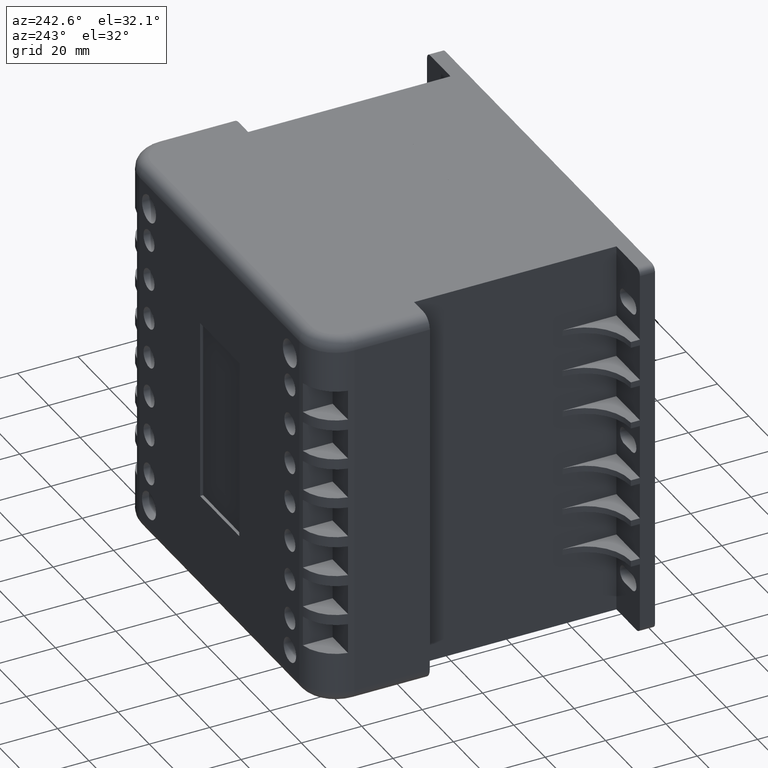
[diagram: clean part render]
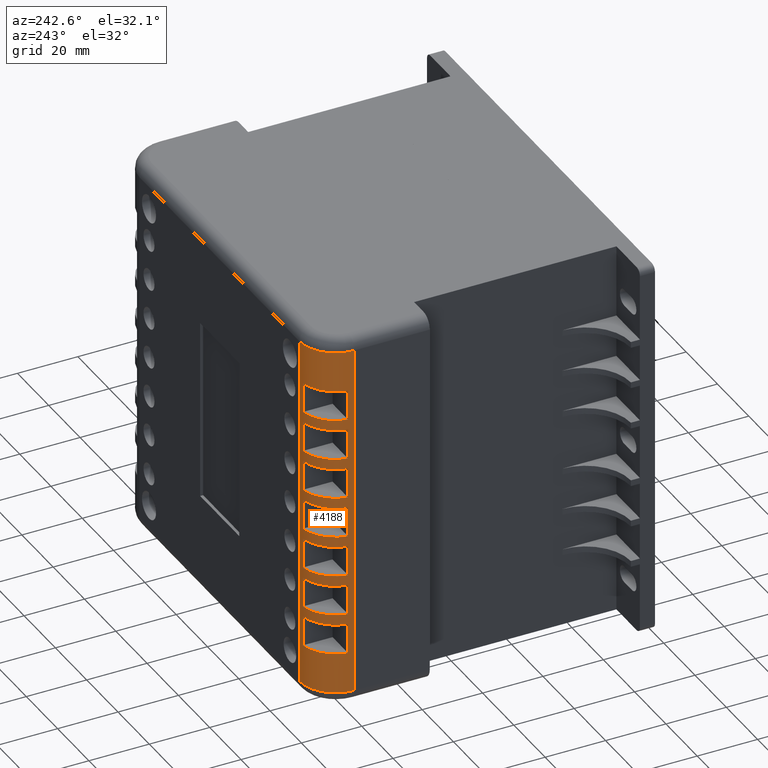
[diagram: same view with one face highlighted and labeled with its STEP entity id]
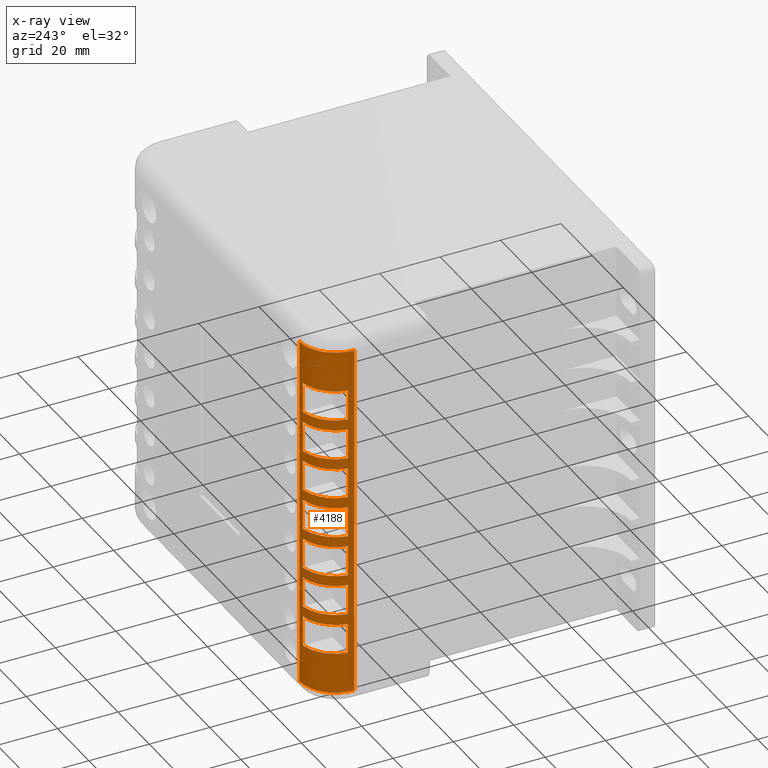
[diagram: x-ray of the same camera — body ghosted, the highlighted face saturated]
A machine part, auxiliary view. The second image highlights one B-rep face of the part: STEP entity #4188.
The next image is the same camera in x-ray: the body ghosted, the highlighted face saturated — about 0% of this face is hidden behind the body in this view.
In plain terms, the highlighted cylindrical surface (partial cylindrical patch) has radius 12 mm, axis along (0, 0, 1).
Its self-contained STEP definition (entity closure, byte-faithful):
#100=CYLINDRICAL_SURFACE('',#4651,12.);
#205=CIRCLE('',#4633,12.);
#208=CIRCLE('',#4640,12.);
#214=CIRCLE('',#4652,12.);
#215=CIRCLE('',#4653,12.);
#216=CIRCLE('',#4654,12.);
#217=CIRCLE('',#4655,12.);
#218=CIRCLE('',#4656,12.);
#219=CIRCLE('',#4657,12.);
#220=CIRCLE('',#4658,12.);
#221=CIRCLE('',#4659,12.);
#222=CIRCLE('',#4660,12.);
#223=CIRCLE('',#4661,12.);
#224=CIRCLE('',#4662,12.);
#225=CIRCLE('',#4663,12.);
#226=CIRCLE('',#4664,12.);
#227=CIRCLE('',#4665,12.);
#257=FACE_BOUND('',#735,.T.);
#258=FACE_BOUND('',#736,.T.);
#259=FACE_BOUND('',#737,.T.);
#260=FACE_BOUND('',#738,.T.);
#261=FACE_BOUND('',#739,.T.);
#262=FACE_BOUND('',#740,.T.);
#263=FACE_BOUND('',#741,.T.);
#475=FACE_OUTER_BOUND('',#734,.T.);
#734=EDGE_LOOP('',(#3272,#3273,#3274,#3275));
#735=EDGE_LOOP('',(#3276,#3277,#3278,#3279));
#736=EDGE_LOOP('',(#3280,#3281,#3282,#3283));
#737=EDGE_LOOP('',(#3284,#3285,#3286,#3287));
#738=EDGE_LOOP('',(#3288,#3289,#3290,#3291));
#739=EDGE_LOOP('',(#3292,#3293,#3294,#3295));
#740=EDGE_LOOP('',(#3296,#3297,#3298,#3299));
#741=EDGE_LOOP('',(#3300,#3301,#3302,#3303));
#1117=LINE('',#6775,#1509);
#1118=LINE('',#6777,#1510);
#1119=LINE('',#6782,#1511);
#1120=LINE('',#6785,#1512);
#1121=LINE('',#6790,#1513);
#1122=LINE('',#6793,#1514);
#1123=LINE('',#6798,#1515);
#1124=LINE('',#6801,#1516);
#1125=LINE('',#6806,#1517);
#1126=LINE('',#6809,#1518);
#1127=LINE('',#6814,#1519);
#1128=LINE('',#6817,#1520);
#1129=LINE('',#6822,#1521);
#1130=LINE('',#6825,#1522);
#1131=LINE('',#6830,#1523);
#1132=LINE('',#6833,#1524);
#1509=VECTOR('',#5634,10.);
#1510=VECTOR('',#5637,10.);
#1511=VECTOR('',#5640,10.);
#1512=VECTOR('',#5643,10.);
#1513=VECTOR('',#5646,10.);
#1514=VECTOR('',#5649,10.);
#1515=VECTOR('',#5652,10.);
#1516=VECTOR('',#5655,10.);
#1517=VECTOR('',#5658,10.);
#1518=VECTOR('',#5661,10.);
#1519=VECTOR('',#5664,10.);
#1520=VECTOR('',#5667,10.);
#1521=VECTOR('',#5670,10.);
#1522=VECTOR('',#5673,10.);
#1523=VECTOR('',#5676,10.);
#1524=VECTOR('',#5679,10.);
#1868=VERTEX_POINT('',#6735);
#1869=VERTEX_POINT('',#6739);
#1872=VERTEX_POINT('',#6751);
#1874=VERTEX_POINT('',#6756);
#1878=VERTEX_POINT('',#6778);
#1879=VERTEX_POINT('',#6779);
#1880=VERTEX_POINT('',#6781);
#1881=VERTEX_POINT('',#6783);
#1882=VERTEX_POINT('',#6786);
#1883=VERTEX_POINT('',#6787);
#1884=VERTEX_POINT('',#6789);
#1885=VERTEX_POINT('',#6791);
#1886=VERTEX_POINT('',#6794);
#1887=VERTEX_POINT('',#6795);
#1888=VERTEX_POINT('',#6797);
#1889=VERTEX_POINT('',#6799);
#1890=VERTEX_POINT('',#6802);
#1891=VERTEX_POINT('',#6803);
#1892=VERTEX_POINT('',#6805);
#1893=VERTEX_POINT('',#6807);
#1894=VERTEX_POINT('',#6810);
#1895=VERTEX_POINT('',#6811);
#1896=VERTEX_POINT('',#6813);
#1897=VERTEX_POINT('',#6815);
#1898=VERTEX_POINT('',#6818);
#1899=VERTEX_POINT('',#6819);
#1900=VERTEX_POINT('',#6821);
#1901=VERTEX_POINT('',#6823);
#1902=VERTEX_POINT('',#6826);
#1903=VERTEX_POINT('',#6827);
#1904=VERTEX_POINT('',#6829);
#1905=VERTEX_POINT('',#6831);
#2348=EDGE_CURVE('',#1869,#1868,#205,.T.);
#2356=EDGE_CURVE('',#1874,#1872,#208,.T.);
#2365=EDGE_CURVE('',#1869,#1872,#1117,.T.);
#2366=EDGE_CURVE('',#1874,#1868,#1118,.T.);
#2367=EDGE_CURVE('',#1878,#1879,#214,.T.);
#2368=EDGE_CURVE('',#1879,#1880,#1119,.T.);
#2369=EDGE_CURVE('',#1880,#1881,#215,.T.);
#2370=EDGE_CURVE('',#1881,#1878,#1120,.T.);
#2371=EDGE_CURVE('',#1882,#1883,#216,.T.);
#2372=EDGE_CURVE('',#1883,#1884,#1121,.T.);
#2373=EDGE_CURVE('',#1884,#1885,#217,.T.);
#2374=EDGE_CURVE('',#1885,#1882,#1122,.T.);
#2375=EDGE_CURVE('',#1886,#1887,#218,.T.);
#2376=EDGE_CURVE('',#1887,#1888,#1123,.T.);
#2377=EDGE_CURVE('',#1888,#1889,#219,.T.);
#2378=EDGE_CURVE('',#1889,#1886,#1124,.T.);
#2379=EDGE_CURVE('',#1890,#1891,#220,.T.);
#2380=EDGE_CURVE('',#1891,#1892,#1125,.T.);
#2381=EDGE_CURVE('',#1892,#1893,#221,.T.);
#2382=EDGE_CURVE('',#1893,#1890,#1126,.T.);
#2383=EDGE_CURVE('',#1894,#1895,#222,.T.);
#2384=EDGE_CURVE('',#1895,#1896,#1127,.T.);
#2385=EDGE_CURVE('',#1896,#1897,#223,.T.);
#2386=EDGE_CURVE('',#1897,#1894,#1128,.T.);
#2387=EDGE_CURVE('',#1898,#1899,#224,.T.);
#2388=EDGE_CURVE('',#1899,#1900,#1129,.T.);
#2389=EDGE_CURVE('',#1900,#1901,#225,.T.);
#2390=EDGE_CURVE('',#1901,#1898,#1130,.T.);
#2391=EDGE_CURVE('',#1902,#1903,#226,.T.);
#2392=EDGE_CURVE('',#1903,#1904,#1131,.T.);
#2393=EDGE_CURVE('',#1904,#1905,#227,.T.);
#2394=EDGE_CURVE('',#1905,#1902,#1132,.T.);
#3272=ORIENTED_EDGE('',*,*,#2348,.F.);
#3273=ORIENTED_EDGE('',*,*,#2365,.T.);
#3274=ORIENTED_EDGE('',*,*,#2356,.F.);
#3275=ORIENTED_EDGE('',*,*,#2366,.T.);
#3276=ORIENTED_EDGE('',*,*,#2367,.T.);
#3277=ORIENTED_EDGE('',*,*,#2368,.T.);
#3278=ORIENTED_EDGE('',*,*,#2369,.T.);
#3279=ORIENTED_EDGE('',*,*,#2370,.T.);
#3280=ORIENTED_EDGE('',*,*,#2371,.T.);
#3281=ORIENTED_EDGE('',*,*,#2372,.T.);
#3282=ORIENTED_EDGE('',*,*,#2373,.T.);
#3283=ORIENTED_EDGE('',*,*,#2374,.T.);
#3284=ORIENTED_EDGE('',*,*,#2375,.T.);
#3285=ORIENTED_EDGE('',*,*,#2376,.T.);
#3286=ORIENTED_EDGE('',*,*,#2377,.T.);
#3287=ORIENTED_EDGE('',*,*,#2378,.T.);
#3288=ORIENTED_EDGE('',*,*,#2379,.T.);
#3289=ORIENTED_EDGE('',*,*,#2380,.T.);
#3290=ORIENTED_EDGE('',*,*,#2381,.T.);
#3291=ORIENTED_EDGE('',*,*,#2382,.T.);
#3292=ORIENTED_EDGE('',*,*,#2383,.T.);
#3293=ORIENTED_EDGE('',*,*,#2384,.T.);
#3294=ORIENTED_EDGE('',*,*,#2385,.T.);
#3295=ORIENTED_EDGE('',*,*,#2386,.T.);
#3296=ORIENTED_EDGE('',*,*,#2387,.T.);
#3297=ORIENTED_EDGE('',*,*,#2388,.T.);
#3298=ORIENTED_EDGE('',*,*,#2389,.T.);
#3299=ORIENTED_EDGE('',*,*,#2390,.T.);
#3300=ORIENTED_EDGE('',*,*,#2391,.T.);
#3301=ORIENTED_EDGE('',*,*,#2392,.T.);
#3302=ORIENTED_EDGE('',*,*,#2393,.T.);
#3303=ORIENTED_EDGE('',*,*,#2394,.T.);
#4188=ADVANCED_FACE('',(#475,#257,#258,#259,#260,#261,#262,#263),#100,.T.);
#4633=AXIS2_PLACEMENT_3D('',#6741,#5590,#5591);
#4640=AXIS2_PLACEMENT_3D('',#6758,#5609,#5610);
#4651=AXIS2_PLACEMENT_3D('',#6776,#5635,#5636);
#4652=AXIS2_PLACEMENT_3D('',#6780,#5638,#5639);
#4653=AXIS2_PLACEMENT_3D('',#6784,#5641,#5642);
#4654=AXIS2_PLACEMENT_3D('',#6788,#5644,#5645);
#4655=AXIS2_PLACEMENT_3D('',#6792,#5647,#5648);
#4656=AXIS2_PLACEMENT_3D('',#6796,#5650,#5651);
#4657=AXIS2_PLACEMENT_3D('',#6800,#5653,#5654);
#4658=AXIS2_PLACEMENT_3D('',#6804,#5656,#5657);
#4659=AXIS2_PLACEMENT_3D('',#6808,#5659,#5660);
#4660=AXIS2_PLACEMENT_3D('',#6812,#5662,#5663);
#4661=AXIS2_PLACEMENT_3D('',#6816,#5665,#5666);
#4662=AXIS2_PLACEMENT_3D('',#6820,#5668,#5669);
#4663=AXIS2_PLACEMENT_3D('',#6824,#5671,#5672);
#4664=AXIS2_PLACEMENT_3D('',#6828,#5674,#5675);
#4665=AXIS2_PLACEMENT_3D('',#6832,#5677,#5678);
#5590=DIRECTION('center_axis',(0.,0.,-1.));
#5591=DIRECTION('ref_axis',(-0.707106781186548,0.707106781186547,0.));
#5609=DIRECTION('center_axis',(-2.81961403079405E-16,0.,1.));
#5610=DIRECTION('ref_axis',(-0.707106781186548,0.707106781186547,-1.85037170770859E-16));
#5634=DIRECTION('',(1.40980701539702E-16,0.,1.));
#5635=DIRECTION('center_axis',(1.40980701539702E-16,0.,1.));
#5636=DIRECTION('ref_axis',(-0.707106781186547,0.707106781186548,0.));
#5637=DIRECTION('',(-1.40980701539702E-16,0.,-1.));
#5638=DIRECTION('center_axis',(-6.82853236189759E-16,0.,-1.));
#5639=DIRECTION('ref_axis',(-0.707106781186547,0.707106781186548,0.));
#5640=DIRECTION('',(1.40980701539702E-16,0.,1.));
#5641=DIRECTION('center_axis',(6.82853236189759E-16,0.,1.));
#5642=DIRECTION('ref_axis',(-0.707106781186547,0.707106781186548,0.));
#5643=DIRECTION('',(-1.40980701539702E-16,0.,-1.));
#5644=DIRECTION('center_axis',(-6.82853236189759E-16,0.,-1.));
#5645=DIRECTION('ref_axis',(-0.707106781186547,0.707106781186548,0.));
#5646=DIRECTION('',(1.40980701539702E-16,0.,1.));
#5647=DIRECTION('center_axis',(6.82853236189759E-16,0.,1.));
#5648=DIRECTION('ref_axis',(-0.707106781186547,0.707106781186548,0.));
#5649=DIRECTION('',(-1.40980701539702E-16,0.,-1.));
#5650=DIRECTION('center_axis',(-6.82853236189759E-16,0.,-1.));
#5651=DIRECTION('ref_axis',(-0.707106781186547,0.707106781186548,0.));
#5652=DIRECTION('',(1.40980701539702E-16,0.,1.));
#5653=DIRECTION('center_axis',(6.82853236189759E-16,0.,1.));
#5654=DIRECTION('ref_axis',(-0.707106781186547,0.707106781186548,0.));
#5655=DIRECTION('',(-1.40980701539702E-16,0.,-1.));
#5656=DIRECTION('center_axis',(-6.82853236189759E-16,0.,-1.));
#5657=DIRECTION('ref_axis',(-0.707106781186547,0.707106781186548,0.));
#5658=DIRECTION('',(1.40980701539702E-16,0.,1.));
#5659=DIRECTION('center_axis',(6.82853236189759E-16,0.,1.));
#5660=DIRECTION('ref_axis',(-0.707106781186547,0.707106781186548,0.));
#5661=DIRECTION('',(-1.40980701539702E-16,0.,-1.));
#5662=DIRECTION('center_axis',(-6.82853236189759E-16,0.,-1.));
#5663=DIRECTION('ref_axis',(-0.707106781186547,0.707106781186548,0.));
#5664=DIRECTION('',(1.40980701539702E-16,0.,1.));
#5665=DIRECTION('center_axis',(6.82853236189759E-16,0.,1.));
#5666=DIRECTION('ref_axis',(-0.707106781186547,0.707106781186548,0.));
#5667=DIRECTION('',(-1.40980701539702E-16,0.,-1.));
#5668=DIRECTION('center_axis',(-6.82853236189759E-16,0.,-1.));
#5669=DIRECTION('ref_axis',(-0.707106781186547,0.707106781186548,0.));
#5670=DIRECTION('',(1.40980701539702E-16,0.,1.));
#5671=DIRECTION('center_axis',(6.82853236189759E-16,0.,1.));
#5672=DIRECTION('ref_axis',(-0.707106781186547,0.707106781186548,0.));
#5673=DIRECTION('',(-1.40980701539702E-16,0.,-1.));
#5674=DIRECTION('center_axis',(-6.82853236189759E-16,0.,-1.));
#5675=DIRECTION('ref_axis',(-0.707106781186547,0.707106781186548,0.));
#5676=DIRECTION('',(1.40980701539702E-16,0.,1.));
#5677=DIRECTION('center_axis',(6.82853236189759E-16,0.,1.));
#5678=DIRECTION('ref_axis',(-0.707106781186547,0.707106781186548,0.));
#5679=DIRECTION('',(-1.40980701539702E-16,0.,-1.));
#6735=CARTESIAN_POINT('',(-114.,37.,4.));
#6739=CARTESIAN_POINT('',(-126.,25.,4.00000000000002));
#6741=CARTESIAN_POINT('Origin',(-114.,25.,4.00000000000002));
#6751=CARTESIAN_POINT('',(-126.,25.,122.));
#6756=CARTESIAN_POINT('',(-114.,37.,122.));
#6758=CARTESIAN_POINT('Origin',(-114.,25.,122.));
#6775=CARTESIAN_POINT('',(-126.,25.,31.5));
#6776=CARTESIAN_POINT('Origin',(-114.,25.,31.5));
#6777=CARTESIAN_POINT('',(-114.,37.,31.5));
#6778=CARTESIAN_POINT('',(-125.832159566199,27.,85.0000000000001));
#6779=CARTESIAN_POINT('',(-116.,36.8321595661992,85.0000000000001));
#6780=CARTESIAN_POINT('Origin',(-114.,25.,85.0000000000001));
#6781=CARTESIAN_POINT('',(-116.,36.8321595661992,95.0000000000001));
#6782=CARTESIAN_POINT('',(-116.,36.8321595661992,31.5));
#6783=CARTESIAN_POINT('',(-125.832159566199,27.,95.0000000000001));
#6784=CARTESIAN_POINT('Origin',(-114.,25.,95.0000000000001));
#6785=CARTESIAN_POINT('',(-125.832159566199,27.,31.5));
#6786=CARTESIAN_POINT('',(-125.832159566199,27.,31.0000000000001));
#6787=CARTESIAN_POINT('',(-116.,36.8321595661992,31.0000000000001));
#6788=CARTESIAN_POINT('Origin',(-114.,25.,31.0000000000001));
#6789=CARTESIAN_POINT('',(-116.,36.8321595661992,41.0000000000001));
#6790=CARTESIAN_POINT('',(-116.,36.8321595661992,31.5));
#6791=CARTESIAN_POINT('',(-125.832159566199,27.,41.0000000000001));
#6792=CARTESIAN_POINT('Origin',(-114.,25.,41.0000000000001));
#6793=CARTESIAN_POINT('',(-125.832159566199,27.,31.5));
#6794=CARTESIAN_POINT('',(-125.832159566199,27.,71.5000000000001));
#6795=CARTESIAN_POINT('',(-116.,36.8321595661992,71.5000000000001));
#6796=CARTESIAN_POINT('Origin',(-114.,25.,71.5000000000001));
#6797=CARTESIAN_POINT('',(-116.,36.8321595661992,81.5000000000001));
#6798=CARTESIAN_POINT('',(-116.,36.8321595661992,31.5));
#6799=CARTESIAN_POINT('',(-125.832159566199,27.,81.5000000000001));
#6800=CARTESIAN_POINT('Origin',(-114.,25.,81.5000000000001));
#6801=CARTESIAN_POINT('',(-125.832159566199,27.,31.5));
#6802=CARTESIAN_POINT('',(-125.832159566199,27.,98.5000000000001));
#6803=CARTESIAN_POINT('',(-116.,36.8321595661992,98.5000000000001));
#6804=CARTESIAN_POINT('Origin',(-114.,25.,98.5000000000001));
#6805=CARTESIAN_POINT('',(-116.,36.8321595661992,108.5));
#6806=CARTESIAN_POINT('',(-116.,36.8321595661992,31.5));
#6807=CARTESIAN_POINT('',(-125.832159566199,27.,108.5));
#6808=CARTESIAN_POINT('Origin',(-114.,25.,108.5));
#6809=CARTESIAN_POINT('',(-125.832159566199,27.,31.5));
#6810=CARTESIAN_POINT('',(-125.832159566199,27.,44.5000000000001));
#6811=CARTESIAN_POINT('',(-116.,36.8321595661992,44.5000000000001));
#6812=CARTESIAN_POINT('Origin',(-114.,25.,44.5000000000001));
#6813=CARTESIAN_POINT('',(-116.,36.8321595661992,54.5000000000001));
#6814=CARTESIAN_POINT('',(-116.,36.8321595661992,31.5));
#6815=CARTESIAN_POINT('',(-125.832159566199,27.,54.5000000000001));
#6816=CARTESIAN_POINT('Origin',(-114.,25.,54.5000000000001));
#6817=CARTESIAN_POINT('',(-125.832159566199,27.,31.5));
#6818=CARTESIAN_POINT('',(-125.832159566199,27.,58.0000000000001));
#6819=CARTESIAN_POINT('',(-116.,36.8321595661992,58.0000000000001));
#6820=CARTESIAN_POINT('Origin',(-114.,25.,58.0000000000001));
#6821=CARTESIAN_POINT('',(-116.,36.8321595661992,68.0000000000001));
#6822=CARTESIAN_POINT('',(-116.,36.8321595661992,31.5));
#6823=CARTESIAN_POINT('',(-125.832159566199,27.,68.0000000000001));
#6824=CARTESIAN_POINT('Origin',(-114.,25.,68.0000000000001));
#6825=CARTESIAN_POINT('',(-125.832159566199,27.,31.5));
#6826=CARTESIAN_POINT('',(-125.832159566199,27.,17.5000000000001));
#6827=CARTESIAN_POINT('',(-116.,36.8321595661992,17.5000000000001));
#6828=CARTESIAN_POINT('Origin',(-114.,25.,17.5000000000001));
#6829=CARTESIAN_POINT('',(-116.,36.8321595661992,27.5000000000001));
#6830=CARTESIAN_POINT('',(-116.,36.8321595661992,31.5));
#6831=CARTESIAN_POINT('',(-125.832159566199,27.,27.5000000000001));
#6832=CARTESIAN_POINT('Origin',(-114.,25.,27.5000000000001));
#6833=CARTESIAN_POINT('',(-125.832159566199,27.,31.5));